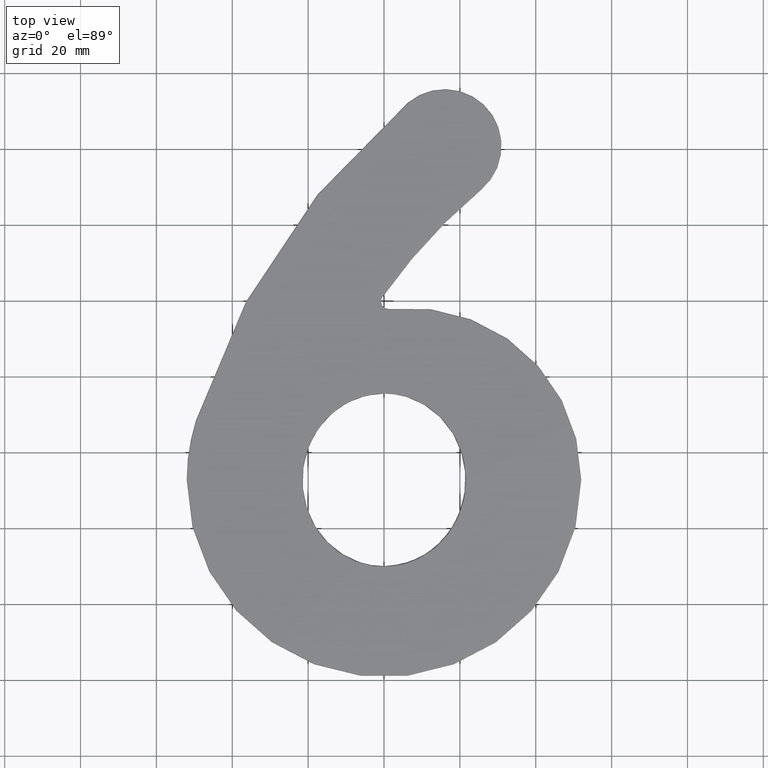
[diagram: clean part render]
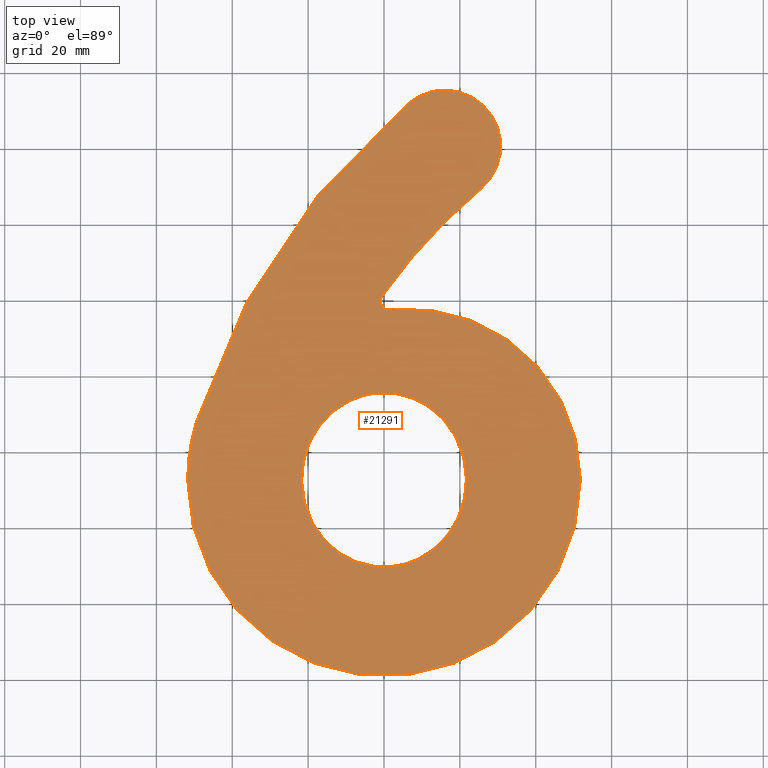
[diagram: same view with one face highlighted and labeled with its STEP entity id]
A machine part, top view. The second image highlights one B-rep face of the part: STEP entity #21291.
In plain terms, the highlighted planar face has unit normal (0, 0, -1).
Its self-contained STEP definition (entity closure, byte-faithful):
#303 = CARTESIAN_POINT ( 'NONE',  ( -3.780945703904916577, 29.29763315763724307, 2.000000000000000444 ) ) ;
#547 = CARTESIAN_POINT ( 'NONE',  ( -13.01693042001187806, 33.56975566129615629, 2.000000000000000000 ) ) ;
#791 = CIRCLE ( 'NONE', #9322, 150.2500000000000000 ) ;
#1142 = EDGE_CURVE ( 'NONE', #2559, #31140, #2379, .T. ) ;
#1324 = CARTESIAN_POINT ( 'NONE',  ( -10.05941382799071171, 72.39588174505657037, 1.999999999999999556 ) ) ;
#1713 = VERTEX_POINT ( 'NONE', #34000 ) ;
#1743 = CARTESIAN_POINT ( 'NONE',  ( 19.97341552751470317, 61.13482979282679963, 1.999999999999999112 ) ) ;
#1806 = ORIENTED_EDGE ( 'NONE', *, *, #23228, .T. ) ;
#1864 = CARTESIAN_POINT ( 'NONE',  ( 13.61075352963113083, 69.95586161668079228, 2.000000000000000444 ) ) ;
#1901 = ORIENTED_EDGE ( 'NONE', *, *, #25396, .T. ) ;
#2129 = CARTESIAN_POINT ( 'NONE',  ( 5.945237701486130177, 74.12749505313659881, 2.000000000000000444 ) ) ;
#2379 = CIRCLE ( 'NONE', #30489, 14.74999999999999289 ) ;
#2388 = CARTESIAN_POINT ( 'NONE',  ( 11.63693609923286942, 32.55389153097277699, 2.000000000000000444 ) ) ;
#2559 = VERTEX_POINT ( 'NONE', #17812 ) ;
#3331 = CARTESIAN_POINT ( 'NONE',  ( -8.323092150211870432, 30.74713827809003419, 1.999999999999999556 ) ) ;
#3588 = CARTESIAN_POINT ( 'NONE',  ( 0.6065549152735948413, 28.99566464526205323, 1.999999999999999556 ) ) ;
#3860 = CARTESIAN_POINT ( 'NONE',  ( -21.28813979706881909, 47.05759224396484086, 1.999999999999999556 ) ) ;
#3899 = ORIENTED_EDGE ( 'NONE', *, *, #30312, .T. ) ;
#4022 = DIRECTION ( 'NONE',  ( -0.000000000000000000, 0.000000000000000000, -1.000000000000000000 ) ) ;
#4114 = CARTESIAN_POINT ( 'NONE',  ( -8.743528696242169218, 73.06328870066532488, 2.000000000000000000 ) ) ;
#4234 = CARTESIAN_POINT ( 'NONE',  ( -17.52118126513973451, 38.35181707365315162, 2.000000000000000444 ) ) ;
#4374 = CARTESIAN_POINT ( 'NONE',  ( -7.734815335547929216, 73.51034502042102758, 2.000000000000000888 ) ) ;
#4612 = CARTESIAN_POINT ( 'NONE',  ( -49.37322652108490217, 67.50312880994151499, 2.000000000000000000 ) ) ;
#4798 = CARTESIAN_POINT ( 'NONE',  ( 5.237219973715919075, 74.32665073567298464, 2.000000000000000000 ) ) ;
#4946 = VERTEX_POINT ( 'NONE', #32771 ) ;
#5062 = CARTESIAN_POINT ( 'NONE',  ( 21.28770183487219825, 56.93962932139933741, 2.000000000000000444 ) ) ;
#5191 = CARTESIAN_POINT ( 'NONE',  ( 21.70664988880126955, 50.37590135619951326, 2.000000000000000000 ) ) ;
#5457 = CARTESIAN_POINT ( 'NONE',  ( 3.535802522348116650, 29.29254104030350447, 2.000000000000000000 ) ) ;
#5476 = EDGE_LOOP ( 'NONE', ( #1806, #24864, #22485, #19347, #3899, #1901, #24084, #33779 ) ) ;
#5597 = CARTESIAN_POINT ( 'NONE',  ( 16.02489501601588273, 36.37570668113027494, 1.999999999999999556 ) ) ;
#5712 = AXIS2_PLACEMENT_3D ( 'NONE', #14666, #32849, #11588 ) ;
#5852 = CARTESIAN_POINT ( 'NONE',  ( 13.39546206110467352, 33.86406049258124540, 1.999999999999999556 ) ) ;
#5959 = CARTESIAN_POINT ( 'NONE',  ( 51.75000000000000711, 52.00000000000000000, 2.000000000000000000 ) ) ;
#6402 = CARTESIAN_POINT ( 'NONE',  ( -9.320741235940204206, 31.20476847538033738, 2.000000000000000000 ) ) ;
#6929 = CARTESIAN_POINT ( 'NONE',  ( -9.078119694643913107, 72.90441370529364917, 2.000000000000000000 ) ) ;
#7067 = CARTESIAN_POINT ( 'NONE',  ( -19.55950747039546300, 62.08665244733515465, 2.000000000000000000 ) ) ;
#7090 = EDGE_CURVE ( 'NONE', #1713, #2559, #791, .T. ) ;
#7319 = CARTESIAN_POINT ( 'NONE',  ( -21.72503963334433053, 50.67887127686027071, 2.000000000000000444 ) ) ;
#7452 = CARTESIAN_POINT ( 'NONE',  ( -3.542363057348738575, 74.74677317813032573, 2.000000000000000000 ) ) ;
#8139 = CARTESIAN_POINT ( 'NONE',  ( 21.49552153577250024, 48.20120641613276291, 2.000000000000000000 ) ) ;
#8269 = CARTESIAN_POINT ( 'NONE',  ( -1.333802376097501963, 74.97001841062635208, 2.000000000000000000 ) ) ;
#8359 = ORIENTED_EDGE ( 'NONE', *, *, #8504, .T. ) ;
#8504 = EDGE_CURVE ( 'NONE', #31394, #23022, #21095, .T. ) ;
#8537 = CARTESIAN_POINT ( 'NONE',  ( 11.01327793324685445, 32.15166991926044204, 2.000000000000000444 ) ) ;
#8585 = DIRECTION ( 'NONE',  ( 0.000000000000000000, 0.000000000000000000, 1.000000000000000000 ) ) ;
#8659 = CARTESIAN_POINT ( 'NONE',  ( 5.690702745279539343, 29.78791001319924803, 1.999999999999999556 ) ) ;
#9322 = AXIS2_PLACEMENT_3D ( 'NONE', #14085, #32410, #17561 ) ;
#9610 = CARTESIAN_POINT ( 'NONE',  ( 6.683464366726754591, 52.00000000000002842, 2.000000000000000000 ) ) ;
#9625 = CARTESIAN_POINT ( 'NONE',  ( -5.206220953118787520, 29.61470884234169176, 2.000000000000000000 ) ) ;
#9678 = FACE_BOUND ( 'NONE', #27759, .T. ) ;
#9881 = CARTESIAN_POINT ( 'NONE',  ( -2.069683074551872615, 74.89563428389152477, 2.000000000000000000 ) ) ;
#10003 = CARTESIAN_POINT ( 'NONE',  ( -16.47943841303667512, 67.02917267726610362, 1.999999999999999556 ) ) ;
#10134 = CARTESIAN_POINT ( 'NONE',  ( -21.49467385116760099, 55.80955243407181143, 2.000000000000000444 ) ) ;
#10412 = CARTESIAN_POINT ( 'NONE',  ( -20.39058276907637079, 60.03808575057983177, 2.000000000000000000 ) ) ;
#10578 = AXIS2_PLACEMENT_3D ( 'NONE', #11218, #38479, #38340 ) ;
#10822 = CARTESIAN_POINT ( 'NONE',  ( 21.72561715123995540, 53.31277641384847499, 2.000000000000000444 ) ) ;
#10879 = AXIS2_PLACEMENT_3D ( 'NONE', #9610, #12688, #37140 ) ;
#10951 = CARTESIAN_POINT ( 'NONE',  ( 16.66323221348567429, 66.80104053094615324, 2.000000000000000444 ) ) ;
#11070 = CARTESIAN_POINT ( 'NONE',  ( 11.86780815518464749, 71.28944259494078040, 1.999999999999999556 ) ) ;
#11208 = CARTESIAN_POINT ( 'NONE',  ( 3.074478609757754111, 74.78226715754479414, 2.000000000000000444 ) ) ;
#11218 = CARTESIAN_POINT ( 'NONE',  ( 1.206649166256039019, 98.99850039729683715, 2.000000000000000000 ) ) ;
#11588 = DIRECTION ( 'NONE',  ( -1.000000000000000000, 4.439347977464986226E-15, 0.000000000000000000 ) ) ;
#12171 = CARTESIAN_POINT ( 'NONE',  ( -2.069683074551872615, 74.89563428389152477, 2.000000000000000000 ) ) ;
#12315 = CARTESIAN_POINT ( 'NONE',  ( 69.06060864443348635, 76.82704842828485425, 2.000000000000000000 ) ) ;
#12414 = CARTESIAN_POINT ( 'NONE',  ( 1.467083156955763634, 96.76362363637954900, 2.000000000000000000 ) ) ;
#12480 = CARTESIAN_POINT ( 'NONE',  ( 2.076191318435119726, 29.10502462477898078, 2.000000000000000000 ) ) ;
#12578 = CARTESIAN_POINT ( 'NONE',  ( -13.58794436233365488, 34.03653875508872773, 2.000000000000000000 ) ) ;
#12688 = DIRECTION ( 'NONE',  ( 0.000000000000000000, 0.000000000000000000, 1.000000000000000000 ) ) ;
#12957 = CARTESIAN_POINT ( 'NONE',  ( -19.99904794987957501, 42.83892454921917903, 2.000000000000000000 ) ) ;
#13475 = CARTESIAN_POINT ( 'NONE',  ( -16.00740730268377732, 67.58985268485463394, 2.000000000000000000 ) ) ;
#14020 = CARTESIAN_POINT ( 'NONE',  ( 21.54077104625709538, 55.50439622719496668, 2.000000000000000444 ) ) ;
#14085 = CARTESIAN_POINT ( 'NONE',  ( 122.1212172888669869, 13.65409685656970851, 2.000000000000000000 ) ) ;
#14413 = CARTESIAN_POINT ( 'NONE',  ( 20.37732934768856907, 43.94993337606672412, 2.000000000000000000 ) ) ;
#14453 = DIRECTION ( 'NONE',  ( -1.000000000000000000, 0.000000000000000000, 0.000000000000000000 ) ) ;
#14551 = CARTESIAN_POINT ( 'NONE',  ( 4.982470584456191176, 29.59801602414149357, 1.999999999999999556 ) ) ;
#14666 = CARTESIAN_POINT ( 'NONE',  ( 122.1212172888669869, 13.65409685656970851, 2.000000000000000000 ) ) ;
#14682 = CARTESIAN_POINT ( 'NONE',  ( 2.807919689700600685, 29.17922374814508402, 2.000000000000000000 ) ) ;
#14738 = EDGE_CURVE ( 'NONE', #23022, #31394, #19951, .T. ) ;
#15504 = CARTESIAN_POINT ( 'NONE',  ( 2.076191318435119726, 29.10502462477898078, 2.000000000000000000 ) ) ;
#15641 = ORIENTED_EDGE ( 'NONE', *, *, #14738, .T. ) ;
#16031 = CARTESIAN_POINT ( 'NONE',  ( -21.74533333292987436, 52.87408547334779030, 2.000000000000000444 ) ) ;
#16243 = CARTESIAN_POINT ( 'NONE',  ( -51.75000000000000711, 52.00000000000000000, 2.000000000000000000 ) ) ;
#16256 = AXIS2_PLACEMENT_3D ( 'NONE', #27020, #8585, #36499 ) ;
#16284 = CARTESIAN_POINT ( 'NONE',  ( -13.86652777665229763, 34.27626648276640253, 2.000000000000000444 ) ) ;
#16422 = CARTESIAN_POINT ( 'NONE',  ( -21.54085918990361748, 48.49967195939301234, 2.000000000000000444 ) ) ;
#16549 = CARTESIAN_POINT ( 'NONE',  ( -21.70754278173812324, 53.61388448330912837, 2.000000000000000000 ) ) ;
#17127 = CARTESIAN_POINT ( 'NONE',  ( 19.85556884601104954, 42.58276128019505791, 1.999999999999999556 ) ) ;
#17257 = CARTESIAN_POINT ( 'NONE',  ( 0.8824287873161384965, 74.99433286449561820, 2.000000000000000000 ) ) ;
#17510 = CARTESIAN_POINT ( 'NONE',  ( 20.25254415750954351, 43.60523441446876802, 2.000000000000000444 ) ) ;
#17561 = DIRECTION ( 'NONE',  ( -1.000000000000000000, 0.000000000000000000, 0.000000000000000000 ) ) ;
#17812 = CARTESIAN_POINT ( 'NONE',  ( 25.48659366673200921, 128.7054419917236601, 2.000000000000000000 ) ) ;
#18036 = CARTESIAN_POINT ( 'NONE',  ( 12.82606261424688654, 33.40908198426674858, 2.000000000000000000 ) ) ;
#18592 = CARTESIAN_POINT ( 'NONE',  ( 1.344006245861111282, 29.03077919073523105, 2.000000000000000000 ) ) ;
#18676 = VERTEX_POINT ( 'NONE', #5959 ) ;
#18865 = CARTESIAN_POINT ( 'NONE',  ( -12.72442457753097500, 33.34272889415444752, 2.000000000000000444 ) ) ;
#19241 = CARTESIAN_POINT ( 'NONE',  ( -21.75384613527542754, 51.40845542239563315, 2.000000000000000000 ) ) ;
#19248 = CIRCLE ( 'NONE', #5712, 179.7500000000000000 ) ;
#19347 = ORIENTED_EDGE ( 'NONE', *, *, #1142, .T. ) ;
#19614 = CARTESIAN_POINT ( 'NONE',  ( -15.00176661347076745, 68.67078306421598199, 2.000000000000000444 ) ) ;
#19951 = B_SPLINE_CURVE_WITH_KNOTS ( 'NONE', 3,
 ( #15504, #18592, #3588, #33814, #36885, #303, #9625, #37161, #21643, #33943, #3331, #6402, #30887, #21910, #37023, #18865, #547, #12578, #16284, #34350, #22578, #4234, #34856, #28322, #31286, #12957, #22179, #3860, #16422, #7319, #19241, #16031, #16549, #10134, #25238, #28591, #10412, #34601, #7067, #25752, #31794, #10003, #13475, #19614, #34468, #37537, #37919, #1324, #22694, #6929, #4114, #4374, #28450, #37410, #7452, #9881 ),
 .UNSPECIFIED., .F., .F.,
 ( 4, 2, 2, 2, 2, 2, 2, 2, 2, 2, 2, 2, 2, 2, 2, 2, 2, 2, 2, 2, 2, 2, 2, 2, 2, 2, 2, 4 ),
 ( 0.06839389586566506363, 0.07059691728777765796, 0.07279993870989026616, 0.07720598155411545482, 0.07830749226517176587, 0.07940900297622806303, 0.08161202439834067124, 0.08381504582045326557, 0.08491655653150957661, 0.08601806724256588765, 0.09042411008679110407, 0.09262713150890371228, 0.09483015293101632048, 0.09923619577524153690, 0.1036422386194667672, 0.1058452600415793754, 0.1080482814636919697, 0.1124543243079171861, 0.1146573457300298082, 0.1168603671521424303, 0.1212664099963676745, 0.1234694314184802966, 0.1256724528405929187, 0.1300784956848181351, 0.1311800063958744322, 0.1322815171069307572, 0.1344845385290433237, 0.1388905813732684846 ),
 .UNSPECIFIED. ) ;
#20168 = CARTESIAN_POINT ( 'NONE',  ( 18.58659267218758870, 39.96427317449040117, 2.000000000000000000 ) ) ;
#20204 = DIRECTION ( 'NONE',  ( 0.000000000000000000, 0.000000000000000000, 1.000000000000000000 ) ) ;
#20298 = CARTESIAN_POINT ( 'NONE',  ( 19.68478817884482979, 61.81013404750078877, 2.000000000000000000 ) ) ;
#20433 = CARTESIAN_POINT ( 'NONE',  ( 3.798896107491750662, 74.65982704509237067, 2.000000000000000000 ) ) ;
#21095 = B_SPLINE_CURVE_WITH_KNOTS ( 'NONE', 3,
 ( #35795, #8269, #23630, #17257, #23105, #11208, #20433, #26312, #4798, #2129, #29155, #35538, #38328, #26183, #11070, #29426, #1864, #29677, #35403, #29290, #10951, #23374, #32478, #20298, #1743, #23498, #32353, #5062, #14020, #10822, #26442, #32602, #5191, #8139, #32220, #29552, #32733, #14413, #17510, #17127, #38469, #20168, #33125, #5597, #24294, #5852, #18036, #2388, #8537, #30193, #32995, #8659, #14551, #5457, #14682, #27238 ),
 .UNSPECIFIED., .F., .F.,
 ( 4, 2, 2, 2, 2, 2, 2, 2, 2, 2, 2, 2, 2, 2, 2, 2, 2, 2, 2, 2, 2, 2, 2, 2, 2, 2, 2, 4 ),
 ( 0.1388905813732684846, 0.1410922286581529073, 0.1432938759430373299, 0.1454955232279217525, 0.1465963468703639638, 0.1476971705128061751, 0.1521004650825750204, 0.1543021123674594430, 0.1565037596523438657, 0.1587054069372282883, 0.1609070542221127109, 0.1653103487918815007, 0.1675119960767659233, 0.1697136433616503182, 0.1741169379314191079, 0.1763185852163035028, 0.1785202325011879254, 0.1829235270709566874, 0.1840243507133988987, 0.1851251743558411100, 0.1873268216407255327, 0.1917301162104943502, 0.1961334107802631954, 0.1983350580651475903, 0.2005367053500320129, 0.2049399999198008304, 0.2071416472046852530, 0.2093432944895696757 ),
 .UNSPECIFIED. ) ;
#21171 = FACE_OUTER_BOUND ( 'NONE', #5476, .T. ) ;
#21291 = ADVANCED_FACE ( 'NONE', ( #9678, #21171 ), #22134, .F. ) ;
#21643 = CARTESIAN_POINT ( 'NONE',  ( -7.302217247412897017, 30.33150895681069414, 2.000000000000000000 ) ) ;
#21910 = CARTESIAN_POINT ( 'NONE',  ( -11.22488686467988650, 32.28486641402234625, 2.000000000000000000 ) ) ;
#22134 = PLANE ( 'NONE',  #38194 ) ;
#22179 = CARTESIAN_POINT ( 'NONE',  ( -20.51181366764384606, 44.20795486917988626, 2.000000000000000000 ) ) ;
#22485 = ORIENTED_EDGE ( 'NONE', *, *, #7090, .T. ) ;
#22578 = CARTESIAN_POINT ( 'NONE',  ( -16.20613683306735098, 36.58723543281006840, 2.000000000000000444 ) ) ;
#22637 = DIRECTION ( 'NONE',  ( -1.000000000000000000, 0.000000000000000000, 0.000000000000000000 ) ) ;
#22694 = CARTESIAN_POINT ( 'NONE',  ( -9.736162082685684283, 72.57061678690895690, 2.000000000000000000 ) ) ;
#22721 = DIRECTION ( 'NONE',  ( 0.000000000000000000, 0.000000000000000000, 1.000000000000000000 ) ) ;
#23019 = CARTESIAN_POINT ( 'NONE',  ( 1.206649166256039019, 98.99850039729683715, 2.000000000000000000 ) ) ;
#23022 = VERTEX_POINT ( 'NONE', #12480 ) ;
#23105 = CARTESIAN_POINT ( 'NONE',  ( 1.616244805892333103, 74.94951887972982263, 2.000000000000000000 ) ) ;
#23228 = EDGE_CURVE ( 'NONE', #39031, #4946, #37331, .T. ) ;
#23374 = CARTESIAN_POINT ( 'NONE',  ( 17.97735925265865120, 65.03270810120636725, 2.000000000000000444 ) ) ;
#23498 = CARTESIAN_POINT ( 'NONE',  ( 20.48950406754197573, 59.75195562454937459, 2.000000000000000000 ) ) ;
#23630 = CARTESIAN_POINT ( 'NONE',  ( -0.5948043385765049429, 75.00466161737512039, 1.999999999999999556 ) ) ;
#23816 = CIRCLE ( 'NONE', #10879, 45.06653563327324719 ) ;
#24084 = ORIENTED_EDGE ( 'NONE', *, *, #24764, .T. ) ;
#24294 = CARTESIAN_POINT ( 'NONE',  ( 15.03091350428871387, 35.30815925752190054, 2.000000000000000444 ) ) ;
#24764 = EDGE_CURVE ( 'NONE', #30486, #18676, #25308, .T. ) ;
#24860 = CIRCLE ( 'NONE', #32130, 2.249999999999984457 ) ;
#24864 = ORIENTED_EDGE ( 'NONE', *, *, #34727, .T. ) ;
#25238 = CARTESIAN_POINT ( 'NONE',  ( -21.22278051135177179, 57.24213611449849282, 2.000000000000000000 ) ) ;
#25308 = CIRCLE ( 'NONE', #33946, 51.75000000000000711 ) ;
#25396 = EDGE_CURVE ( 'NONE', #39133, #30486, #30085, .T. ) ;
#25517 = CARTESIAN_POINT ( 'NONE',  ( 0.000000000000000000, 52.00000000000000000, 2.000000000000000000 ) ) ;
#25581 = EDGE_CURVE ( 'NONE', #18676, #39031, #23816, .T. ) ;
#25752 = CARTESIAN_POINT ( 'NONE',  ( -18.57712080785793418, 64.05344464215403377, 2.000000000000000444 ) ) ;
#26183 = CARTESIAN_POINT ( 'NONE',  ( 11.25014558218512306, 71.69923341341539924, 2.000000000000000000 ) ) ;
#26312 = CARTESIAN_POINT ( 'NONE',  ( 4.878405753890040053, 74.41738804032877397, 2.000000000000000444 ) ) ;
#26442 = CARTESIAN_POINT ( 'NONE',  ( 21.75432816493552579, 52.57247692260730787, 2.000000000000000000 ) ) ;
#27020 = CARTESIAN_POINT ( 'NONE',  ( 0.000000000000000000, 52.00000000000000000, 2.000000000000000000 ) ) ;
#27238 = CARTESIAN_POINT ( 'NONE',  ( 2.076191318435119726, 29.10502462477898078, 2.000000000000000000 ) ) ;
#27759 = EDGE_LOOP ( 'NONE', ( #8359, #15641 ) ) ;
#28322 = CARTESIAN_POINT ( 'NONE',  ( -18.69678803549931345, 40.22476359906270460, 1.999999999999999556 ) ) ;
#28450 = CARTESIAN_POINT ( 'NONE',  ( -7.051708720192015001, 73.77116034942861234, 2.000000000000000444 ) ) ;
#28591 = CARTESIAN_POINT ( 'NONE',  ( -20.62280968053105923, 59.34490085778826796, 2.000000000000000000 ) ) ;
#29024 = DIRECTION ( 'NONE',  ( -1.000000000000000000, 0.000000000000000000, 0.000000000000000000 ) ) ;
#29155 = CARTESIAN_POINT ( 'NONE',  ( 6.295363049867039429, 74.01889022999158385, 2.000000000000000000 ) ) ;
#29290 = CARTESIAN_POINT ( 'NONE',  ( 16.19284177475696396, 67.37392842538147875, 2.000000000000000444 ) ) ;
#29426 = CARTESIAN_POINT ( 'NONE',  ( 13.04627824985769280, 70.41876029431668371, 2.000000000000000000 ) ) ;
#29552 = CARTESIAN_POINT ( 'NONE',  ( 20.72130332236956818, 45.00041175042149177, 2.000000000000000444 ) ) ;
#29588 = DIRECTION ( 'NONE',  ( -0.000000000000000000, -0.000000000000000000, -1.000000000000000000 ) ) ;
#29677 = CARTESIAN_POINT ( 'NONE',  ( 14.69164333698010871, 68.97657282662333955, 2.000000000000000000 ) ) ;
#30085 = CIRCLE ( 'NONE', #16256, 51.75000000000000711 ) ;
#30193 = CARTESIAN_POINT ( 'NONE',  ( 9.102770475760618041, 31.05499932270604546, 1.999999999999999556 ) ) ;
#30312 = EDGE_CURVE ( 'NONE', #31140, #39133, #19248, .T. ) ;
#30486 = VERTEX_POINT ( 'NONE', #16243 ) ;
#30489 = AXIS2_PLACEMENT_3D ( 'NONE', #35180, #20204, #32123 ) ;
#30887 = CARTESIAN_POINT ( 'NONE',  ( -9.967457517790448307, 31.54309873984843193, 2.000000000000000000 ) ) ;
#31140 = VERTEX_POINT ( 'NONE', #38748 ) ;
#31286 = CARTESIAN_POINT ( 'NONE',  ( -19.04555299823294945, 40.86791650368530071, 2.000000000000000444 ) ) ;
#31394 = VERTEX_POINT ( 'NONE', #12171 ) ;
#31794 = CARTESIAN_POINT ( 'NONE',  ( -17.80778335488732012, 65.28952103301828913, 2.000000000000000444 ) ) ;
#32123 = DIRECTION ( 'NONE',  ( -1.000000000000000000, 1.881733940042639107E-15, 0.000000000000000000 ) ) ;
#32130 = AXIS2_PLACEMENT_3D ( 'NONE', #23019, #29588, #14453 ) ;
#32220 = CARTESIAN_POINT ( 'NONE',  ( 21.22598781292005299, 46.76864942406216130, 1.999999999999999556 ) ) ;
#32353 = CARTESIAN_POINT ( 'NONE',  ( 20.71353394026295192, 59.05374733725424363, 2.000000000000000000 ) ) ;
#32410 = DIRECTION ( 'NONE',  ( -0.000000000000000000, -0.000000000000000000, -1.000000000000000000 ) ) ;
#32478 = CARTESIAN_POINT ( 'NONE',  ( 18.73078632594991078, 63.78386250784630107, 2.000000000000000444 ) ) ;
#32602 = CARTESIAN_POINT ( 'NONE',  ( 21.74460357115241749, 51.10513997459435842, 2.000000000000000444 ) ) ;
#32733 = CARTESIAN_POINT ( 'NONE',  ( 20.61162913376414707, 44.64717849691774632, 2.000000000000000444 ) ) ;
#32771 = CARTESIAN_POINT ( 'NONE',  ( -1.043350833743945660, 98.99850039729683715, 2.000000000000000000 ) ) ;
#32849 = DIRECTION ( 'NONE',  ( 0.000000000000000000, 0.000000000000000000, 1.000000000000000000 ) ) ;
#32995 = CARTESIAN_POINT ( 'NONE',  ( 7.772232711264611460, 30.46379846485176301, 1.999999999999999556 ) ) ;
#33125 = CARTESIAN_POINT ( 'NONE',  ( 17.81764711943407065, 38.72323022932810943, 2.000000000000000000 ) ) ;
#33779 = ORIENTED_EDGE ( 'NONE', *, *, #25581, .T. ) ;
#33814 = CARTESIAN_POINT ( 'NONE',  ( -0.8716202445463137050, 29.00518932636564884, 2.000000000000000444 ) ) ;
#33943 = CARTESIAN_POINT ( 'NONE',  ( -7.985938199081461519, 30.60292107824256647, 2.000000000000000444 ) ) ;
#33946 = AXIS2_PLACEMENT_3D ( 'NONE', #25517, #22721, #29024 ) ;
#34000 = CARTESIAN_POINT ( 'NONE',  ( -0.6315790653376986974, 100.2959659916659803, 2.000000000000000000 ) ) ;
#34350 = CARTESIAN_POINT ( 'NONE',  ( -15.22572290431110709, 35.50576618547955832, 2.000000000000000000 ) ) ;
#34468 = CARTESIAN_POINT ( 'NONE',  ( -14.47371672414958255, 69.18471553941786567, 2.000000000000000000 ) ) ;
#34601 = CARTESIAN_POINT ( 'NONE',  ( -19.85941749553021651, 61.40844500318616639, 2.000000000000000444 ) ) ;
#34727 = EDGE_CURVE ( 'NONE', #4946, #1713, #24860, .T. ) ;
#34856 = CARTESIAN_POINT ( 'NONE',  ( -17.93517171139948019, 38.96715120417694322, 2.000000000000000000 ) ) ;
#35180 = CARTESIAN_POINT ( 'NONE',  ( 15.99999999999998579, 140.0000000000000000, 2.000000000000000000 ) ) ;
#35403 = CARTESIAN_POINT ( 'NONE',  ( 15.20805426738409594, 68.46017871056356796, 2.000000000000000000 ) ) ;
#35538 = CARTESIAN_POINT ( 'NONE',  ( 8.026986311582421152, 73.43169374748350720, 2.000000000000000444 ) ) ;
#35795 = CARTESIAN_POINT ( 'NONE',  ( -2.069683074551872615, 74.89563428389152477, 2.000000000000000000 ) ) ;
#36499 = DIRECTION ( 'NONE',  ( -1.000000000000000000, 1.743103782624037899E-15, 0.000000000000000000 ) ) ;
#36885 = CARTESIAN_POINT ( 'NONE',  ( -1.603881923705073431, 29.04963628268463083, 2.000000000000000444 ) ) ;
#37023 = CARTESIAN_POINT ( 'NONE',  ( -11.83559883524694989, 32.68830580293886356, 1.999999999999999556 ) ) ;
#37140 = DIRECTION ( 'NONE',  ( -1.000000000000000000, 1.847639843551891794E-15, 0.000000000000000000 ) ) ;
#37161 = CARTESIAN_POINT ( 'NONE',  ( -6.954630304431109522, 30.20398365946168795, 2.000000000000000000 ) ) ;
#37331 = CIRCLE ( 'NONE', #10578, 2.249999999999984457 ) ;
#37410 = CARTESIAN_POINT ( 'NONE',  ( -4.971005488735950273, 74.44372442223571795, 2.000000000000000000 ) ) ;
#37537 = CARTESIAN_POINT ( 'NONE',  ( -12.82935827915749094, 70.63402774312862675, 2.000000000000000000 ) ) ;
#37919 = CARTESIAN_POINT ( 'NONE',  ( -11.64764350429550177, 71.48413496609161655, 2.000000000000000444 ) ) ;
#38194 = AXIS2_PLACEMENT_3D ( 'NONE', #12315, #4022, #22637 ) ;
#38328 = CARTESIAN_POINT ( 'NONE',  ( 9.352036572749577559, 72.82189315318903766, 2.000000000000000000 ) ) ;
#38340 = DIRECTION ( 'NONE',  ( -1.000000000000000000, 0.000000000000000000, 0.000000000000000000 ) ) ;
#38469 = CARTESIAN_POINT ( 'NONE',  ( 19.56081034147853615, 41.91658446650585290, 2.000000000000000000 ) ) ;
#38479 = DIRECTION ( 'NONE',  ( -0.000000000000000000, -0.000000000000000000, -1.000000000000000000 ) ) ;
#38748 = CARTESIAN_POINT ( 'NONE',  ( 6.513406333267906412, 151.2945580082763115, 2.000000000000000000 ) ) ;
#39031 = VERTEX_POINT ( 'NONE', #12414 ) ;
#39133 = VERTEX_POINT ( 'NONE', #4612 ) ;